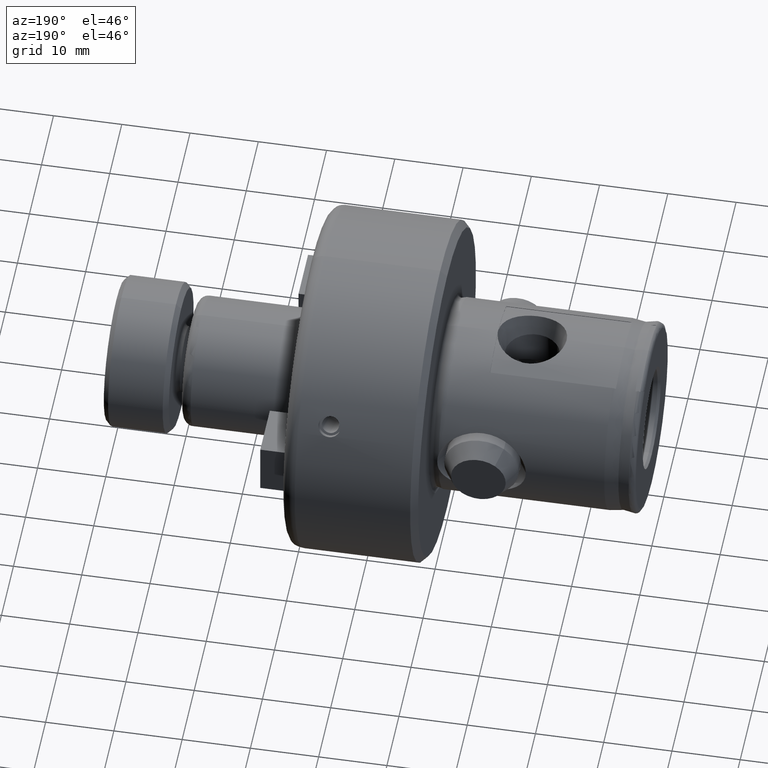
[diagram: clean part render]
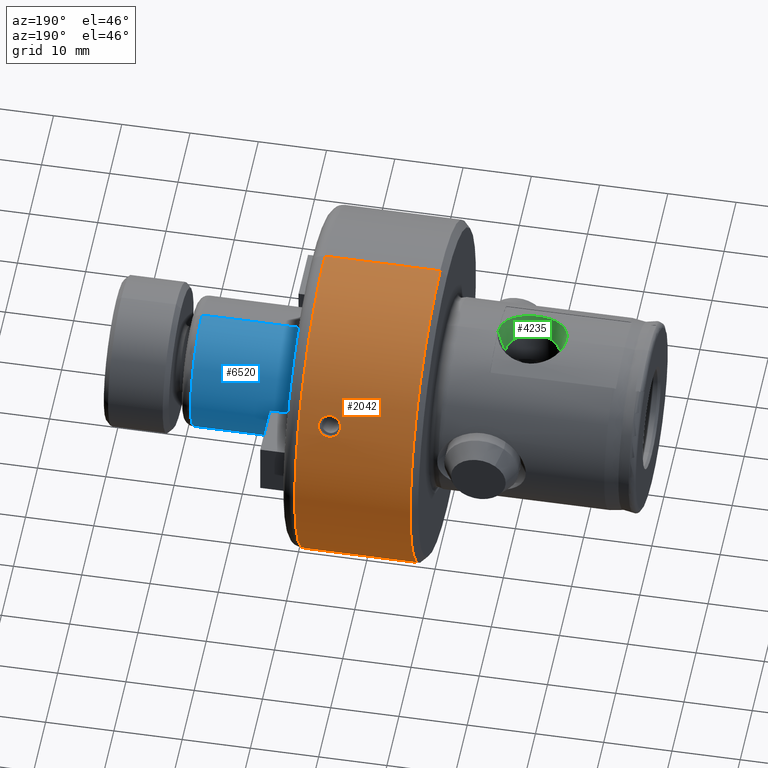
[diagram: same view with three faces highlighted in distinct colors, each labeled with its STEP entity id]
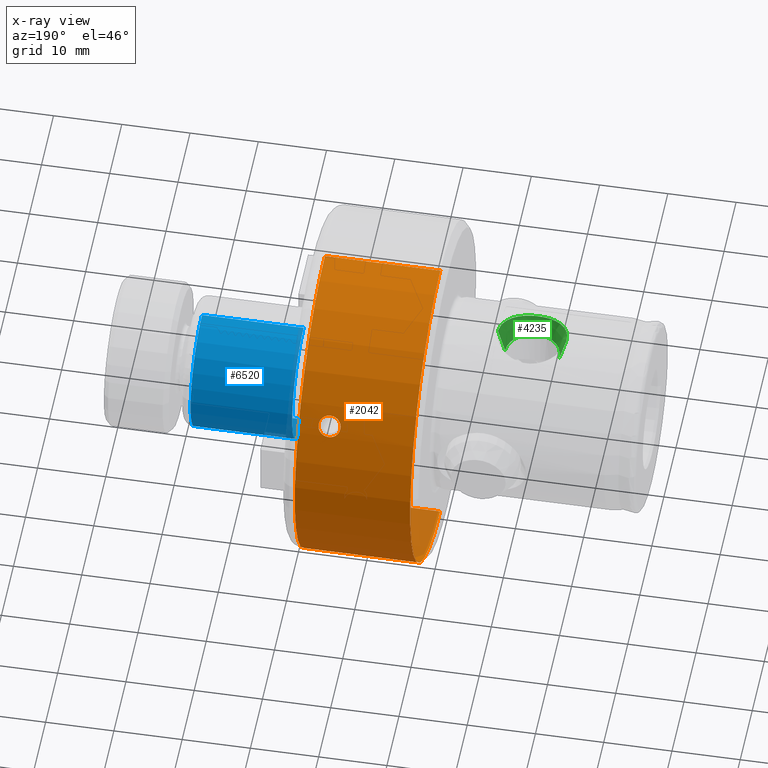
[diagram: x-ray of the same camera — body ghosted, the three highlighted faces saturated]
A machine part, auxiliary view with three faces highlighted in distinct colors.
The next image is the same camera in x-ray (body ghosted, the three faces saturated) — at least one of them is partly hidden behind the body in this view.
Their STEP definitions:

[orange] entity #2042 — the highlighted cylindrical surface (partial cylindrical patch) has radius 25 mm, axis along (-1, -0, -0).
#21 = CARTESIAN_POINT ( 'NONE',  ( 41.85774347064486300, 21.90750889314831800, 12.04453157268549100 ) ) ;
#162 = CARTESIAN_POINT ( 'NONE',  ( 43.39999999999999100, 20.79234971597825100, 13.88085708047090000 ) ) ;
#206 = CARTESIAN_POINT ( 'NONE',  ( 0.0000000000000000000, 0.0000000000000000000, 0.0000000000000000000 ) ) ;
#209 = CARTESIAN_POINT ( 'NONE',  ( 43.29393010295656600, 22.41734971597822900, 11.06627451817145200 ) ) ;
#276 = CIRCLE ( 'NONE', #6014, 25.00000000000000000 ) ;
#348 = CARTESIAN_POINT ( 'NONE',  ( 43.18700457726119200, 20.79822106189124000, 13.87207370426344100 ) ) ;
#464 = B_SPLINE_CURVE_WITH_KNOTS ( 'NONE', 3,
 ( #2512, #4742, #348, #1864, #1901, #8579, #3379, #4147, #2883, #8137, #4370, #8906, #5222, #5128, #6600, #1468, #21, #2201, #749, #7409, #1528, #3863, #8973, #9040, #853, #6798, #8309, #5258, #209, #1558 ),
 .UNSPECIFIED., .F., .F.,
 ( 4, 2, 2, 2, 2, 2, 2, 2, 2, 2, 2, 2, 2, 2, 4 ),
 ( 7.152448122690996000E-018, 0.0003176143766529818900, 0.0006352287533059566200, 0.0009528431299589314000, 0.001270457506611906100, 0.001905686259917848300, 0.002540915013223790500, 0.002858529389876760100, 0.003176143766529728800, 0.003493758143182697900, 0.003811372519835666600, 0.004128986896488636200, 0.004446601273141605400, 0.004764215649794573600, 0.005081830026447542800 ),
 .UNSPECIFIED. ) ;
#577 = CARTESIAN_POINT ( 'NONE',  ( 44.86087844573343400, 21.28203327245016000, 13.11810842593483900 ) ) ;
#606 = CARTESIAN_POINT ( 'NONE',  ( 44.85987831829844900, 22.00258024144896400, 11.86996733673950600 ) ) ;
#652 = CARTESIAN_POINT ( 'NONE',  ( 31.00000000000000000, 0.0000000000000000000, 25.00000000000000000 ) ) ;
#654 = ORIENTED_EDGE ( 'NONE', *, *, #6995, .F. ) ;
#711 = CARTESIAN_POINT ( 'NONE',  ( 44.12159660711532200, 1.459878439488591800, -24.95737219445074800 ) ) ;
#749 = CARTESIAN_POINT ( 'NONE',  ( 41.99005646027087100, 22.04666620409958700, 11.78780172341981100 ) ) ;
#766 = CARTESIAN_POINT ( 'NONE',  ( 43.18686813941175000, 1.625173586618894300, -24.94712029160487200 ) ) ;
#853 = CARTESIAN_POINT ( 'NONE',  ( 42.67970423990554000, 22.34395134262267400, 11.21380877983701800 ) ) ;
#1025 = EDGE_CURVE ( 'NONE', #5726, #2281, #6939, .T. ) ;
#1127 = EDGE_CURVE ( 'NONE', #6820, #3763, #464, .T. ) ;
#1145 = DIRECTION ( 'NONE',  ( -1.000000000000000000, -0.0000000000000000000, -0.0000000000000000000 ) ) ;
#1317 = CARTESIAN_POINT ( 'NONE',  ( 44.40003454794334900, 20.97267616830090700, 13.60769679449909700 ) ) ;
#1348 = CARTESIAN_POINT ( 'NONE',  ( 43.61209112192997800, 22.41734971597823300, 11.06627451817145200 ) ) ;
#1439 = CARTESIAN_POINT ( 'NONE',  ( 44.81102148457240000, 21.23284080218963900, 13.19751025973127800 ) ) ;
#1468 = CARTESIAN_POINT ( 'NONE',  ( 41.82704208860042200, 21.85852986817327400, 12.13324094988073800 ) ) ;
#1485 = CARTESIAN_POINT ( 'NONE',  ( 42.41045804322591600, 1.293325274659826900, -24.96659334002234900 ) ) ;
#1512 = CARTESIAN_POINT ( 'NONE',  ( 43.50854504132832500, 1.624912403227762400, -24.94713730449746000 ) ) ;
#1528 = CARTESIAN_POINT ( 'NONE',  ( 42.17487186804378000, 22.16725535554657300, 11.55934941529438800 ) ) ;
#1542 = CARTESIAN_POINT ( 'NONE',  ( 43.82176609994794300, 1.572880689720650400, -24.95048050319164500 ) ) ;
#1558 = CARTESIAN_POINT ( 'NONE',  ( 43.39999999999999900, 22.41734971597823300, 11.06627451817145600 ) ) ;
#1864 = CARTESIAN_POINT ( 'NONE',  ( 42.97926185079825200, 20.82115681465703700, 13.83762469122769900 ) ) ;
#1901 = CARTESIAN_POINT ( 'NONE',  ( 42.87603813435971000, 20.83849974730385700, 13.81153860388051400 ) ) ;
#2042 = ADVANCED_FACE ( 'NONE', ( #3446, #4461 ), #3202, .T. ) ;
#2056 = CARTESIAN_POINT ( 'NONE',  ( 45.02491241034672200, 21.70490264411011300, 12.40599446041400400 ) ) ;
#2082 = CARTESIAN_POINT ( 'NONE',  ( 45.02517357264131400, 21.54407885587298900, 12.68458338379357100 ) ) ;
#2201 = CARTESIAN_POINT ( 'NONE',  ( 41.93916305164677300, 22.00166322003717300, 11.87166804879812400 ) ) ;
#2221 = CARTESIAN_POINT ( 'NONE',  ( 43.61405423975826800, 1.614317530600132100, -24.94783377198587700 ) ) ;
#2258 = EDGE_LOOP ( 'NONE', ( #3078, #2707, #4058, #4477, #654, #2280 ) ) ;
#2280 = ORIENTED_EDGE ( 'NONE', *, *, #8529, .F. ) ;
#2281 = VERTEX_POINT ( 'NONE', #4537 ) ;
#2282 = CARTESIAN_POINT ( 'NONE',  ( 44.69954929618270300, 0.9983379570208752400, -24.98050922615090000 ) ) ;
#2384 = VERTEX_POINT ( 'NONE', #4641 ) ;
#2476 = ORIENTED_EDGE ( 'NONE', *, *, #1127, .T. ) ;
#2512 = CARTESIAN_POINT ( 'NONE',  ( 43.39999999999999100, 20.79234971597825100, 13.88085708047090000 ) ) ;
#2707 = ORIENTED_EDGE ( 'NONE', *, *, #7035, .T. ) ;
#2883 = CARTESIAN_POINT ( 'NONE',  ( 42.32567069504668200, 21.01287902064268600, 13.54490848848558600 ) ) ;
#2886 = CARTESIAN_POINT ( 'NONE',  ( 44.94150894149613900, 21.90856098852238200, 12.04261671186369600 ) ) ;
#2924 = B_SPLINE_CURVE_WITH_KNOTS ( 'NONE', 3,
 ( #5141, #3744, #5902, #8184, #2282, #4383, #8091, #5965, #711, #5204, #1542, #2221, #1512, #766, #8153, #3685, #2985, #1485, #8922, #5935, #6715, #4416, #7452, #3776 ),
 .UNSPECIFIED., .F., .F.,
 ( 4, 2, 2, 2, 2, 2, 2, 2, 2, 2, 2, 4 ),
 ( 0.005081830207558256000, 0.005716913247623492600, 0.006351996287688729100, 0.006669537807721347800, 0.006987079327753966500, 0.007304620847786585200, 0.007622162367819203100, 0.008257245407884460400, 0.008574786927917089600, 0.008892328447949718700, 0.009527411488014976900, 0.01016249452808023500 ),
 .UNSPECIFIED. ) ;
#2985 = CARTESIAN_POINT ( 'NONE',  ( 42.58704160834664500, 1.411021687902280100, -24.96021816948706000 ) ) ;
#3020 = CARTESIAN_POINT ( 'NONE',  ( 47.89999999999998400, 3.061616997868383000E-015, -25.00000000000000000 ) ) ;
#3078 = ORIENTED_EDGE ( 'NONE', *, *, #7391, .T. ) ;
#3202 = CYLINDRICAL_SURFACE ( 'NONE', #6152, 25.00000000000000000 ) ;
#3337 = VECTOR ( 'NONE', #7528, 1000.000000000000000 ) ;
#3379 = CARTESIAN_POINT ( 'NONE',  ( 42.58591096147375800, 20.91102661349075800, 13.70154933195029800 ) ) ;
#3419 = DIRECTION ( 'NONE',  ( 0.0000000000000000000, 0.0000000000000000000, 1.000000000000000000 ) ) ;
#3446 = FACE_BOUND ( 'NONE', #8676, .T. ) ;
#3545 = CARTESIAN_POINT ( 'NONE',  ( 44.97288067858400500, 21.85862374047791700, 12.13306869595554700 ) ) ;
#3575 = CARTESIAN_POINT ( 'NONE',  ( 44.80992740520307600, 22.04670188600806200, 11.78773706954049400 ) ) ;
#3685 = CARTESIAN_POINT ( 'NONE',  ( 42.68040179452204800, 1.460878590271743400, -24.95731355151449200 ) ) ;
#3744 = CARTESIAN_POINT ( 'NONE',  ( 45.02499999999999100, 0.2120911199327063200, -24.99999999999999600 ) ) ;
#3763 = VERTEX_POINT ( 'NONE', #4456 ) ;
#3776 = CARTESIAN_POINT ( 'NONE',  ( 41.77499999999999900, 5.683873841029438900E-016, -25.00000000000000000 ) ) ;
#3863 = CARTESIAN_POINT ( 'NONE',  ( 42.32655513710310700, 22.23708314584149500, 11.42444318414719400 ) ) ;
#4058 = ORIENTED_EDGE ( 'NONE', *, *, #5354, .T. ) ;
#4130 = B_SPLINE_CURVE_WITH_KNOTS ( 'NONE', 3,
 ( #9433, #1348, #4999, #7989, #7298, #5060, #5028, #3575, #606, #2886, #3545, #8051, #2056, #2082, #8717, #577, #1439, #7269, #8743, #1317, #7353, #7235, #6483, #5859 ),
 .UNSPECIFIED., .F., .F.,
 ( 4, 2, 2, 2, 2, 2, 2, 2, 2, 2, 2, 4 ),
 ( 0.005081830026447542800, 0.005716913036454175300, 0.006351996046460807800, 0.006669537551464131000, 0.006987079056467455100, 0.007304620561470779100, 0.007622162066474102300, 0.008257245076480753900, 0.008574786581484078800, 0.008892328086487402000, 0.009527411096494048400, 0.01016249410650069100 ),
 .UNSPECIFIED. ) ;
#4147 = CARTESIAN_POINT ( 'NONE',  ( 42.40927731524055100, 20.97553031816364600, 13.60259592863743400 ) ) ;
#4189 = CARTESIAN_POINT ( 'NONE',  ( 0.0000000000000000000, 3.061616997868383000E-015, -25.00000000000000000 ) ) ;
#4263 = VERTEX_POINT ( 'NONE', #652 ) ;
#4270 = CARTESIAN_POINT ( 'NONE',  ( 0.0000000000000000000, 0.0000000000000000000, 25.00000000000000000 ) ) ;
#4370 = CARTESIAN_POINT ( 'NONE',  ( 41.97982216615925900, 21.23089805651468300, 13.20178900159304000 ) ) ;
#4383 = CARTESIAN_POINT ( 'NONE',  ( 44.47500133933206000, 1.223199751816384900, -24.97017045067406100 ) ) ;
#4416 = CARTESIAN_POINT ( 'NONE',  ( 41.81817896868336200, 0.4280875396696609000, -24.99709906639702700 ) ) ;
#4456 = CARTESIAN_POINT ( 'NONE',  ( 43.39999999999999900, 22.41734971597823300, 11.06627451817145600 ) ) ;
#4461 = FACE_OUTER_BOUND ( 'NONE', #2258, .T. ) ;
#4477 = ORIENTED_EDGE ( 'NONE', *, *, #1025, .T. ) ;
#4537 = CARTESIAN_POINT ( 'NONE',  ( 31.00000000000000000, 3.061616997868383000E-015, -25.00000000000000000 ) ) ;
#4641 = CARTESIAN_POINT ( 'NONE',  ( 45.02500000000000600, 3.061617004812090200E-015, -25.00000000000000000 ) ) ;
#4742 = CARTESIAN_POINT ( 'NONE',  ( 43.29260200462074700, 20.79234971597825800, 13.88085708047090500 ) ) ;
#4768 = CARTESIAN_POINT ( 'NONE',  ( 47.89999999999998400, 0.0000000000000000000, 0.0000000000000000000 ) ) ;
#4793 = LINE ( 'NONE', #4189, #8242 ) ;
#4999 = CARTESIAN_POINT ( 'NONE',  ( 43.82588049874078000, 22.39854339852145400, 11.10458593756917100 ) ) ;
#5028 = CARTESIAN_POINT ( 'NONE',  ( 44.69183825553142200, 22.12948457381536100, 11.63158294336582600 ) ) ;
#5060 = CARTESIAN_POINT ( 'NONE',  ( 44.62319938482735900, 22.16820796691237700, 11.55751572915494100 ) ) ;
#5128 = CARTESIAN_POINT ( 'NONE',  ( 41.77496215970331400, 21.70335612575815500, 12.40868941466391600 ) ) ;
#5141 = CARTESIAN_POINT ( 'NONE',  ( 45.02500000000000600, 3.061617004812090200E-015, -25.00000000000000000 ) ) ;
#5204 = CARTESIAN_POINT ( 'NONE',  ( 43.92506838519037900, 1.541508972519312700, -24.95246324510005900 ) ) ;
#5222 = CARTESIAN_POINT ( 'NONE',  ( 41.77507599281913300, 21.54432063280600200, 12.68413217035969600 ) ) ;
#5258 = CARTESIAN_POINT ( 'NONE',  ( 43.18619936179541700, 22.41263999702843500, 11.07582962187965100 ) ) ;
#5316 = VERTEX_POINT ( 'NONE', #3020 ) ;
#5354 = EDGE_CURVE ( 'NONE', #2384, #5726, #2924, .T. ) ;
#5393 = DIRECTION ( 'NONE',  ( 0.0000000000000000000, 0.0000000000000000000, 1.000000000000000000 ) ) ;
#5597 = DIRECTION ( 'NONE',  ( -1.000000000000000000, -0.0000000000000000000, -0.0000000000000000000 ) ) ;
#5726 = VERTEX_POINT ( 'NONE', #6359 ) ;
#5786 = EDGE_CURVE ( 'NONE', #3763, #6820, #4130, .T. ) ;
#5859 = CARTESIAN_POINT ( 'NONE',  ( 43.39999999999999100, 20.79234971597825100, 13.88085708047090000 ) ) ;
#5902 = CARTESIAN_POINT ( 'NONE',  ( 44.98241816905985500, 0.4258805911300634400, -24.99713772403720600 ) ) ;
#5935 = CARTESIAN_POINT ( 'NONE',  ( 42.10172736509670000, 1.000035047461170600, -24.98044083455407400 ) ) ;
#5937 = VECTOR ( 'NONE', #7952, 1000.000000000000000 ) ;
#5965 = CARTESIAN_POINT ( 'NONE',  ( 44.21487086412638900, 1.409927587728630400, -24.96028046039494800 ) ) ;
#6014 = AXIS2_PLACEMENT_3D ( 'NONE', #4768, #1145, #6945 ) ;
#6152 = AXIS2_PLACEMENT_3D ( 'NONE', #206, #9076, #5393 ) ;
#6359 = CARTESIAN_POINT ( 'NONE',  ( 41.77499999999999900, 5.683873841029438900E-016, -25.00000000000000000 ) ) ;
#6483 = CARTESIAN_POINT ( 'NONE',  ( 43.61474670917893100, 20.79234971597824700, 13.88085708047090000 ) ) ;
#6600 = CARTESIAN_POINT ( 'NONE',  ( 41.78553567463622900, 21.75659967420916300, 12.31508158973736900 ) ) ;
#6715 = CARTESIAN_POINT ( 'NONE',  ( 41.98059590583577700, 0.8189680910792012100, -24.98734703690412900 ) ) ;
#6798 = CARTESIAN_POINT ( 'NONE',  ( 42.87660954450381500, 22.38048116356332400, 11.14072402672403900 ) ) ;
#6820 = VERTEX_POINT ( 'NONE', #162 ) ;
#6939 = LINE ( 'NONE', #8226, #3337 ) ;
#6945 = DIRECTION ( 'NONE',  ( 0.0000000000000000000, 0.0000000000000000000, 1.000000000000000000 ) ) ;
#6995 = EDGE_CURVE ( 'NONE', #4263, #2281, #7334, .T. ) ;
#7035 = EDGE_CURVE ( 'NONE', #5316, #2384, #4793, .T. ) ;
#7183 = DIRECTION ( 'NONE',  ( -1.000000000000000000, -0.0000000000000000000, -0.0000000000000000000 ) ) ;
#7235 = CARTESIAN_POINT ( 'NONE',  ( 43.82808747610605600, 20.81645734306301400, 13.84491684090241000 ) ) ;
#7269 = CARTESIAN_POINT ( 'NONE',  ( 44.69332497088847600, 21.13903243051470700, 13.34725115851534700 ) ) ;
#7298 = CARTESIAN_POINT ( 'NONE',  ( 44.39833750286915400, 22.27152824244776900, 11.35788214948610500 ) ) ;
#7334 = CIRCLE ( 'NONE', #7558, 25.00000000000000000 ) ;
#7353 = CARTESIAN_POINT ( 'NONE',  ( 44.21896773880076400, 20.90612383972290200, 13.70914310397390400 ) ) ;
#7391 = EDGE_CURVE ( 'NONE', #9400, #5316, #276, .T. ) ;
#7409 = CARTESIAN_POINT ( 'NONE',  ( 42.10770763190460300, 22.12919050657977100, 11.63214028926513600 ) ) ;
#7452 = CARTESIAN_POINT ( 'NONE',  ( 41.77499999999997700, 0.2147466908243011700, -24.99999999999998900 ) ) ;
#7528 = DIRECTION ( 'NONE',  ( -1.000000000000000000, -0.0000000000000000000, -0.0000000000000000000 ) ) ;
#7558 = AXIS2_PLACEMENT_3D ( 'NONE', #8622, #7183, #3419 ) ;
#7632 = CARTESIAN_POINT ( 'NONE',  ( 47.89999999999998400, 0.0000000000000000000, 25.00000000000000000 ) ) ;
#7952 = DIRECTION ( 'NONE',  ( -1.000000000000000000, -0.0000000000000000000, -0.0000000000000000000 ) ) ;
#7989 = CARTESIAN_POINT ( 'NONE',  ( 44.21700702036733300, 22.32603722494091200, 11.24965053016586000 ) ) ;
#8051 = CARTESIAN_POINT ( 'NONE',  ( 45.01431753927780500, 21.75705542378954900, 12.31427330761789000 ) ) ;
#8055 = ORIENTED_EDGE ( 'NONE', *, *, #5786, .T. ) ;
#8091 = CARTESIAN_POINT ( 'NONE',  ( 44.39149558109311800, 1.291838550482678800, -24.96667077573018600 ) ) ;
#8137 = CARTESIAN_POINT ( 'NONE',  ( 42.10087749953082400, 21.13427590426098500, 13.35533244786631500 ) ) ;
#8153 = CARTESIAN_POINT ( 'NONE',  ( 42.97591137548466400, 1.583106177715995800, -24.94995869107940900 ) ) ;
#8184 = CARTESIAN_POINT ( 'NONE',  ( 44.82053532487415700, 0.8170073013484574500, -24.98741218577723100 ) ) ;
#8226 = CARTESIAN_POINT ( 'NONE',  ( 0.0000000000000000000, 3.061616997868383000E-015, -25.00000000000000000 ) ) ;
#8242 = VECTOR ( 'NONE', #5597, 1000.000000000000000 ) ;
#8309 = CARTESIAN_POINT ( 'NONE',  ( 42.97791977706357600, 22.39416151228409600, 11.11314373213263600 ) ) ;
#8529 = EDGE_CURVE ( 'NONE', #9400, #4263, #9200, .T. ) ;
#8579 = CARTESIAN_POINT ( 'NONE',  ( 42.67924320972808500, 20.88354601788576300, 13.74333205753657500 ) ) ;
#8622 = CARTESIAN_POINT ( 'NONE',  ( 31.00000000000000000, 0.0000000000000000000, 0.0000000000000000000 ) ) ;
#8676 = EDGE_LOOP ( 'NONE', ( #2476, #8055 ) ) ;
#8717 = CARTESIAN_POINT ( 'NONE',  ( 44.98310616818798700, 21.43614812444189600, 12.86586138290083900 ) ) ;
#8743 = CARTESIAN_POINT ( 'NONE',  ( 44.62476851086231700, 21.09416258870032500, 13.41797093860824000 ) ) ;
#8906 = CARTESIAN_POINT ( 'NONE',  ( 41.81775236489073700, 21.43488304572333500, 12.86794676492190900 ) ) ;
#8922 = CARTESIAN_POINT ( 'NONE',  ( 42.32677802046442400, 1.224768882407666600, -24.97009340753229600 ) ) ;
#8973 = CARTESIAN_POINT ( 'NONE',  ( 42.40872653989312400, 22.26775344652630700, 11.36444581965855200 ) ) ;
#9040 = CARTESIAN_POINT ( 'NONE',  ( 42.58471373959918800, 22.32107916708093500, 11.25934710185917200 ) ) ;
#9076 = DIRECTION ( 'NONE',  ( -1.000000000000000000, -0.0000000000000000000, -0.0000000000000000000 ) ) ;
#9200 = LINE ( 'NONE', #4270, #5937 ) ;
#9400 = VERTEX_POINT ( 'NONE', #7632 ) ;
#9433 = CARTESIAN_POINT ( 'NONE',  ( 43.39999999999999900, 22.41734971597823300, 11.06627451817145600 ) ) ;

[blue] entity #6520 — the highlighted cylindrical surface (partial cylindrical patch) has radius 9.525 mm, axis along (-1, -0, -0).
#365 = DIRECTION ( 'NONE',  ( 0.0000000000000000000, 0.0000000000000000000, 1.000000000000000000 ) ) ;
#404 = EDGE_CURVE ( 'NONE', #2487, #4922, #5468, .T. ) ;
#669 = CARTESIAN_POINT ( 'NONE',  ( 51.01223641030747300, 0.0000000000000000000, 0.0000000000000000000 ) ) ;
#900 = EDGE_CURVE ( 'NONE', #7150, #3027, #3487, .T. ) ;
#1097 = DIRECTION ( 'NONE',  ( -1.000000000000000000, -0.0000000000000000000, -0.0000000000000000000 ) ) ;
#1751 = AXIS2_PLACEMENT_3D ( 'NONE', #3982, #1097, #365 ) ;
#1762 = CIRCLE ( 'NONE', #2964, 9.525000000000000400 ) ;
#1858 = CARTESIAN_POINT ( 'NONE',  ( 51.01223641030747300, 0.0000000000000000000, -9.525000000000000400 ) ) ;
#2115 = DIRECTION ( 'NONE',  ( 0.0000000000000000000, 0.0000000000000000000, 1.000000000000000000 ) ) ;
#2208 = CARTESIAN_POINT ( 'NONE',  ( 51.01223641030747300, 1.166476076187854000E-015, 9.525000000000000400 ) ) ;
#2451 = EDGE_LOOP ( 'NONE', ( #3383, #7547, #8383, #7878 ) ) ;
#2487 = VERTEX_POINT ( 'NONE', #6227 ) ;
#2648 = DIRECTION ( 'NONE',  ( 0.0000000000000000000, 0.0000000000000000000, 1.000000000000000000 ) ) ;
#2964 = AXIS2_PLACEMENT_3D ( 'NONE', #669, #6541, #2115 ) ;
#3027 = VERTEX_POINT ( 'NONE', #1858 ) ;
#3383 = ORIENTED_EDGE ( 'NONE', *, *, #6973, .T. ) ;
#3487 = LINE ( 'NONE', #5100, #6710 ) ;
#3982 = CARTESIAN_POINT ( 'NONE',  ( 0.0000000000000000000, 0.0000000000000000000, 0.0000000000000000000 ) ) ;
#4581 = AXIS2_PLACEMENT_3D ( 'NONE', #4970, #4838, #2648 ) ;
#4838 = DIRECTION ( 'NONE',  ( -1.000000000000000000, -0.0000000000000000000, -0.0000000000000000000 ) ) ;
#4922 = VERTEX_POINT ( 'NONE', #2208 ) ;
#4970 = CARTESIAN_POINT ( 'NONE',  ( 65.89999999999999100, 0.0000000000000000000, 0.0000000000000000000 ) ) ;
#5097 = CARTESIAN_POINT ( 'NONE',  ( 65.89999999999999100, 1.166476076187854000E-015, -9.525000000000000400 ) ) ;
#5100 = CARTESIAN_POINT ( 'NONE',  ( 0.0000000000000000000, 1.166476076187854000E-015, -9.525000000000000400 ) ) ;
#5468 = LINE ( 'NONE', #7848, #5799 ) ;
#5746 = DIRECTION ( 'NONE',  ( -1.000000000000000000, -0.0000000000000000000, -0.0000000000000000000 ) ) ;
#5799 = VECTOR ( 'NONE', #7788, 1000.000000000000000 ) ;
#5800 = EDGE_CURVE ( 'NONE', #4922, #3027, #1762, .T. ) ;
#6227 = CARTESIAN_POINT ( 'NONE',  ( 65.89999999999999100, 0.0000000000000000000, 9.525000000000000400 ) ) ;
#6520 = ADVANCED_FACE ( 'NONE', ( #8204 ), #7300, .T. ) ;
#6541 = DIRECTION ( 'NONE',  ( -1.000000000000000000, -0.0000000000000000000, -0.0000000000000000000 ) ) ;
#6710 = VECTOR ( 'NONE', #5746, 1000.000000000000000 ) ;
#6750 = CIRCLE ( 'NONE', #4581, 9.525000000000000400 ) ;
#6973 = EDGE_CURVE ( 'NONE', #2487, #7150, #6750, .T. ) ;
#7150 = VERTEX_POINT ( 'NONE', #5097 ) ;
#7300 = CYLINDRICAL_SURFACE ( 'NONE', #1751, 9.525000000000000400 ) ;
#7547 = ORIENTED_EDGE ( 'NONE', *, *, #900, .T. ) ;
#7788 = DIRECTION ( 'NONE',  ( -1.000000000000000000, -0.0000000000000000000, -0.0000000000000000000 ) ) ;
#7848 = CARTESIAN_POINT ( 'NONE',  ( 0.0000000000000000000, 0.0000000000000000000, 9.525000000000000400 ) ) ;
#7878 = ORIENTED_EDGE ( 'NONE', *, *, #404, .F. ) ;
#8204 = FACE_OUTER_BOUND ( 'NONE', #2451, .T. ) ;
#8383 = ORIENTED_EDGE ( 'NONE', *, *, #5800, .F. ) ;

[green] entity #4235 — the highlighted conical surface has half-angle 15 deg.
#181 = CARTESIAN_POINT ( 'NONE',  ( 22.54191015702186000, -0.1037325836829057200, 14.00000000000000200 ) ) ;
#331 = CARTESIAN_POINT ( 'NONE',  ( 13.48629527656920700, -2.900875694304177400, 13.62866467596752300 ) ) ;
#428 = CARTESIAN_POINT ( 'NONE',  ( 21.21510109451230300, -3.242868601581364400, 13.55138631118658300 ) ) ;
#530 = CARTESIAN_POINT ( 'NONE',  ( 21.79199729124428200, -2.511345034040944700, 13.70566513447191800 ) ) ;
#818 = LINE ( 'NONE', #7498, #3360 ) ;
#1034 = CARTESIAN_POINT ( 'NONE',  ( 13.13075755083897500, -2.386868032696373400, 13.72751262702438700 ) ) ;
#1234 = CARTESIAN_POINT ( 'NONE',  ( 17.50000000000000400, 0.0000000000000000000, 17.07000000000000000 ) ) ;
#1297 = AXIS2_PLACEMENT_3D ( 'NONE', #1234, #6404, #2782 ) ;
#1500 = CARTESIAN_POINT ( 'NONE',  ( 22.50000000000000000, -0.4601276684633549000, 13.92243661871350100 ) ) ;
#1660 = VERTEX_POINT ( 'NONE', #7921 ) ;
#1719 = CARTESIAN_POINT ( 'NONE',  ( 14.12810773918984000, -3.568346146378239300, 13.46943704025527700 ) ) ;
#1783 = EDGE_CURVE ( 'NONE', #7363, #1660, #4827, .T. ) ;
#1786 = CARTESIAN_POINT ( 'NONE',  ( 16.64416537715304800, -4.735487217438251400, 13.10499511709525100 ) ) ;
#1852 = CARTESIAN_POINT ( 'NONE',  ( 12.47684628644831400, 1.731427626524877800E-015, 13.93000000000000700 ) ) ;
#1917 = CARTESIAN_POINT ( 'NONE',  ( 22.46815623844412000, -0.7758062109083924100, 13.91205583688992000 ) ) ;
#2009 = EDGE_CURVE ( 'NONE', #6305, #5863, #8926, .T. ) ;
#2183 = FACE_OUTER_BOUND ( 'NONE', #7135, .T. ) ;
#2265 = CARTESIAN_POINT ( 'NONE',  ( 22.50000000000000000, -0.6195287105817886000, 13.98628557468940100 ) ) ;
#2405 = VECTOR ( 'NONE', #5186, 1000.000000000000100 ) ;
#2595 = CARTESIAN_POINT ( 'NONE',  ( 15.73411841391183300, -4.500205134743788800, 13.18763001351505100 ) ) ;
#2782 = DIRECTION ( 'NONE',  ( 1.000000000000000000, 0.0000000000000000000, 0.0000000000000000000 ) ) ;
#3110 = B_SPLINE_CURVE_WITH_KNOTS ( 'NONE', 3,
 ( #1852, #9166, #4789, #8426, #4722, #5482, #1034, #331, #7620, #1719, #7030, #6894, #8365, #2595, #3194, #1786, #6207, #3951, #9130, #7748, #8336, #3916, #7685, #9098, #4007, #4198, #428, #8629, #530, #6333, #4135, #5629, #1917, #5575 ),
 .UNSPECIFIED., .F., .F.,
 ( 4, 2, 2, 2, 2, 2, 2, 2, 2, 2, 2, 2, 2, 2, 2, 2, 4 ),
 ( 0.01501490917538173300, 0.01595262293013784500, 0.01689033668489395300, 0.01782805043965006400, 0.01876576419440617600, 0.01970347794916228700, 0.02064119170391839600, 0.02157890545867450400, 0.02251661921343060800, 0.02345433296818671300, 0.02439204672294281700, 0.02532976047769892500, 0.02626747423245502600, 0.02720518798721113400, 0.02814290174196724300, 0.02908061549672334700, 0.03001832925147945200 ),
 .UNSPECIFIED. ) ;
#3194 = CARTESIAN_POINT ( 'NONE',  ( 16.03594804406514400, -4.597752717891116200, 13.15369106819762900 ) ) ;
#3360 = VECTOR ( 'NONE', #4488, 999.9999999999998900 ) ;
#3774 = ORIENTED_EDGE ( 'NONE', *, *, #1783, .T. ) ;
#3833 = CARTESIAN_POINT ( 'NONE',  ( 22.51396394253156800, -0.5167509676191376400, 13.99083816030865900 ) ) ;
#3861 = CARTESIAN_POINT ( 'NONE',  ( 22.50000000000000000, -0.5143158778262690900, 13.94096892549697000 ) ) ;
#3916 = CARTESIAN_POINT ( 'NONE',  ( 19.42290762722883100, -4.441356566760552100, 13.20723637557031800 ) ) ;
#3951 = CARTESIAN_POINT ( 'NONE',  ( 17.58306971877026100, -4.804921636073569100, 13.07963672176236300 ) ) ;
#4005 = B_SPLINE_CURVE_WITH_KNOTS ( 'NONE', 3,
 ( #6838, #3833, #8317, #181, #5327 ),
 .UNSPECIFIED., .F., .F.,
 ( 4, 1, 4 ),
 ( 0.01089935162120170100, 0.01120844053823601100, 0.01151752945527032000 ),
 .UNSPECIFIED. ) ;
#4007 = CARTESIAN_POINT ( 'NONE',  ( 20.51311923206156600, -3.849854531591162800, 13.39178731253686100 ) ) ;
#4135 = CARTESIAN_POINT ( 'NONE',  ( 22.21503025668623400, -1.683403279844142100, 13.83164073914757200 ) ) ;
#4198 = CARTESIAN_POINT ( 'NONE',  ( 20.99525875615345800, -3.458458489150865400, 13.49761447127724000 ) ) ;
#4235 = ADVANCED_FACE ( 'NONE', ( #2183 ), #6125, .F. ) ;
#4249 = ORIENTED_EDGE ( 'NONE', *, *, #6406, .F. ) ;
#4365 = CARTESIAN_POINT ( 'NONE',  ( 22.50000000000000000, -0.6195287105817886000, 13.98628557468940100 ) ) ;
#4384 = AXIS2_PLACEMENT_3D ( 'NONE', #8792, #7977, #5039 ) ;
#4488 = DIRECTION ( 'NONE',  ( 0.2588190451025144700, 0.0000000000000000000, 0.9659258262890700900 ) ) ;
#4688 = VERTEX_POINT ( 'NONE', #8522 ) ;
#4722 = CARTESIAN_POINT ( 'NONE',  ( 12.73266211553295300, -1.542789390847027800, 13.84771449854254400 ) ) ;
#4789 = CARTESIAN_POINT ( 'NONE',  ( 12.50900355231770300, -0.6258472104104395600, 13.91938630549805300 ) ) ;
#4827 = LINE ( 'NONE', #5883, #2405 ) ;
#5012 = ORIENTED_EDGE ( 'NONE', *, *, #6542, .T. ) ;
#5039 = DIRECTION ( 'NONE',  ( 1.000000000000000000, 0.0000000000000000000, 0.0000000000000000000 ) ) ;
#5165 = EDGE_CURVE ( 'NONE', #6204, #7363, #8938, .T. ) ;
#5186 = DIRECTION ( 'NONE',  ( -0.2588190451025141300, 3.169619151431686100E-017, 0.9659258262890700900 ) ) ;
#5327 = CARTESIAN_POINT ( 'NONE',  ( 22.54191015702185300, -7.143214382866784000E-023, 13.99999999999999800 ) ) ;
#5482 = CARTESIAN_POINT ( 'NONE',  ( 12.97920187934304400, -2.113966189612152700, 13.77247531753726100 ) ) ;
#5575 = CARTESIAN_POINT ( 'NONE',  ( 22.50000000000000000, -0.4601276684633549000, 13.92243661871350100 ) ) ;
#5629 = CARTESIAN_POINT ( 'NONE',  ( 22.40307277788181800, -1.088137564913086900, 13.89085307145456700 ) ) ;
#5863 = VERTEX_POINT ( 'NONE', #1500 ) ;
#5883 = CARTESIAN_POINT ( 'NONE',  ( 11.63548582221463000, 7.181958516379130500E-016, 17.07000000000000000 ) ) ;
#6083 = ORIENTED_EDGE ( 'NONE', *, *, #5165, .T. ) ;
#6125 = CONICAL_SURFACE ( 'NONE', #1297, 5.864514177785374600, 0.2617993877991427500 ) ;
#6204 = VERTEX_POINT ( 'NONE', #7319 ) ;
#6207 = CARTESIAN_POINT ( 'NONE',  ( 16.95351705558090000, -4.777184958684799200, 13.08973866433695400 ) ) ;
#6305 = VERTEX_POINT ( 'NONE', #4365 ) ;
#6333 = CARTESIAN_POINT ( 'NONE',  ( 22.09246679610852100, -1.967786563727504300, 13.79375201079133400 ) ) ;
#6404 = DIRECTION ( 'NONE',  ( 1.542435424415811200E-016, 0.0000000000000000000, 1.000000000000000000 ) ) ;
#6406 = EDGE_CURVE ( 'NONE', #6204, #4688, #818, .T. ) ;
#6542 = EDGE_CURVE ( 'NONE', #1660, #5863, #3110, .T. ) ;
#6838 = CARTESIAN_POINT ( 'NONE',  ( 22.50000000000000000, -0.6195287105817886000, 13.98628557468940100 ) ) ;
#6894 = CARTESIAN_POINT ( 'NONE',  ( 14.88900317628136700, -4.108705987543239700, 13.31470929429331600 ) ) ;
#7030 = CARTESIAN_POINT ( 'NONE',  ( 14.37281258025600100, -3.765870161739370400, 13.41518185675434600 ) ) ;
#7135 = EDGE_LOOP ( 'NONE', ( #6083, #3774, #5012, #7178, #8524, #4249 ) ) ;
#7178 = ORIENTED_EDGE ( 'NONE', *, *, #2009, .F. ) ;
#7319 = CARTESIAN_POINT ( 'NONE',  ( 21.50000000000000400, 0.0000000000000000000, 10.11153835707228400 ) ) ;
#7336 = EDGE_CURVE ( 'NONE', #6305, #4688, #4005, .T. ) ;
#7363 = VERTEX_POINT ( 'NONE', #8280 ) ;
#7469 = CARTESIAN_POINT ( 'NONE',  ( 22.50000000000000000, -0.4601276684633549000, 13.92243661871350100 ) ) ;
#7498 = CARTESIAN_POINT ( 'NONE',  ( 23.36451417778538100, 0.0000000000000000000, 17.07000000000000000 ) ) ;
#7620 = CARTESIAN_POINT ( 'NONE',  ( 13.68616697719140200, -3.136540223769872100, 13.57593584229688100 ) ) ;
#7685 = CARTESIAN_POINT ( 'NONE',  ( 19.70833720039760100, -4.318444077529484600, 13.24821629246133300 ) ) ;
#7748 = CARTESIAN_POINT ( 'NONE',  ( 18.51885556148542400, -4.705992480211714100, 13.11543282358158200 ) ) ;
#7921 = CARTESIAN_POINT ( 'NONE',  ( 12.47684628644831400, 1.731427626524877800E-015, 13.93000000000000700 ) ) ;
#7977 = DIRECTION ( 'NONE',  ( -1.542435424415811200E-016, -0.0000000000000000000, -1.000000000000000000 ) ) ;
#8280 = CARTESIAN_POINT ( 'NONE',  ( 13.50000000000000500, 5.540446777818696400E-016, 10.11153835707228400 ) ) ;
#8317 = CARTESIAN_POINT ( 'NONE',  ( 22.53489710086665100, -0.3107178230748487400, 13.99769451029315300 ) ) ;
#8336 = CARTESIAN_POINT ( 'NONE',  ( 18.82358572458600300, -4.636641384344370600, 13.14030698352085300 ) ) ;
#8365 = CARTESIAN_POINT ( 'NONE',  ( 15.16116720286703100, -4.255446821532061100, 13.26820723257598000 ) ) ;
#8426 = CARTESIAN_POINT ( 'NONE',  ( 12.63637958919252000, -1.239667860239404200, 13.87839910281909200 ) ) ;
#8522 = CARTESIAN_POINT ( 'NONE',  ( 22.54191015702185300, -7.143214382866784000E-023, 13.99999999999999800 ) ) ;
#8524 = ORIENTED_EDGE ( 'NONE', *, *, #7336, .T. ) ;
#8629 = CARTESIAN_POINT ( 'NONE',  ( 21.61270221245414900, -2.770980728955340300, 13.65516038541851200 ) ) ;
#8792 = CARTESIAN_POINT ( 'NONE',  ( 17.50000000000000400, 0.0000000000000000000, 10.11153835707228400 ) ) ;
#8926 = B_SPLINE_CURVE_WITH_KNOTS ( 'NONE', 3,
 ( #2265, #8971, #3861, #7469 ),
 .UNSPECIFIED., .F., .F.,
 ( 4, 4 ),
 ( 0.002973587855760531600, 0.003141529162926254600 ),
 .UNSPECIFIED. ) ;
#8938 = CIRCLE ( 'NONE', #4384, 4.000000000000000000 ) ;
#8971 = CARTESIAN_POINT ( 'NONE',  ( 22.50000000000000000, -0.5678188571875616400, 13.96255524141807800 ) ) ;
#9098 = CARTESIAN_POINT ( 'NONE',  ( 20.25233547197260000, -4.023635976268975500, 13.34022736548512500 ) ) ;
#9130 = CARTESIAN_POINT ( 'NONE',  ( 17.90015850140851600, -4.790217572305256700, 13.08506820882999700 ) ) ;
#9166 = CARTESIAN_POINT ( 'NONE',  ( 12.47684628644832600, -0.3149609745297555200, 13.93000000000000300 ) ) ;